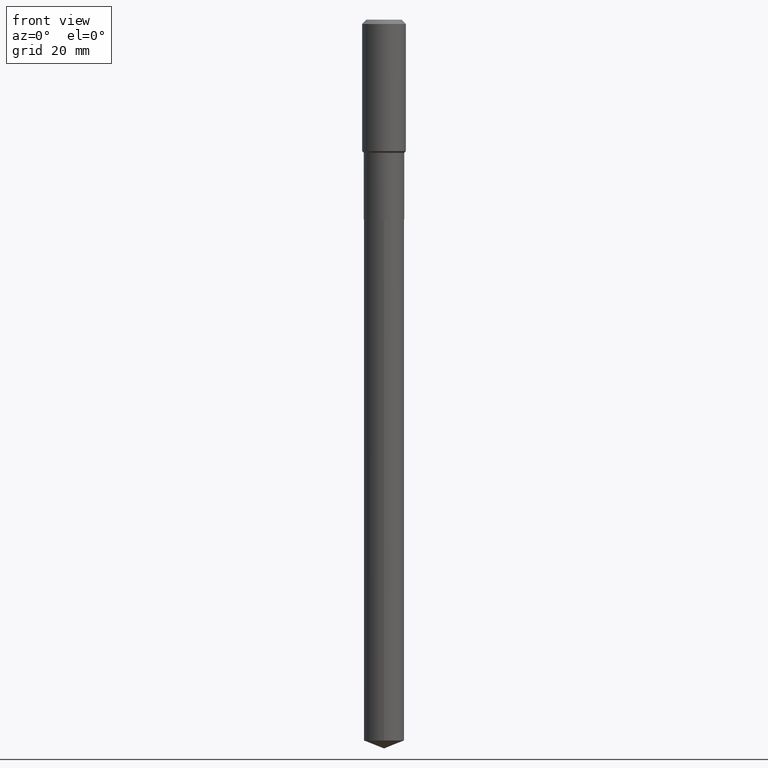
[diagram: clean part render]
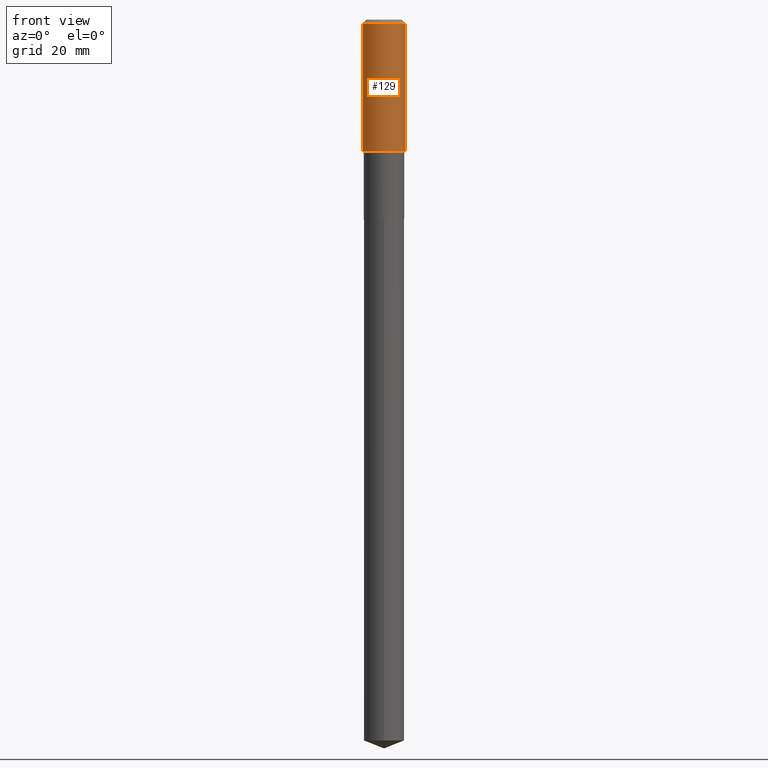
[diagram: same view with one face highlighted and labeled with its STEP entity id]
A machine part, front view. The second image highlights one B-rep face of the part: STEP entity #129.
In plain terms, the highlighted cylindrical surface (edge-blend (fillet) strip) has radius 7.9997 mm, axis along (-0, 0, 1).
Its self-contained STEP definition (entity closure, byte-faithful):
#8 = EDGE_LOOP ( 'NONE', ( #171, #224, #110, #112 ) ) ;
#40 = CARTESIAN_POINT ( 'NONE',  ( -0.3149500000000000077, -1.183779908383150389E-15, -0.06299000000000036514 ) ) ;
#47 = AXIS2_PLACEMENT_3D ( 'NONE', #126, #272, #401 ) ;
#51 = CARTESIAN_POINT ( 'NONE',  ( -0.3149500000000001743, 2.237854346276436774E-15, -1.549218606675783237E-29 ) ) ;
#88 = LINE ( 'NONE', #51, #189 ) ;
#90 = DIRECTION ( 'NONE',  ( 1.000000000000000000, -6.982962677686265922E-15, 4.876176775795935232E-29 ) ) ;
#110 = ORIENTED_EDGE ( 'NONE', *, *, #111, .T. ) ;
#111 = EDGE_CURVE ( 'NONE', #191, #482, #117, .T. ) ;
#112 = ORIENTED_EDGE ( 'NONE', *, *, #409, .F. ) ;
#117 = LINE ( 'NONE', #266, #168 ) ;
#123 = AXIS2_PLACEMENT_3D ( 'NONE', #341, #232, #90 ) ;
#126 = CARTESIAN_POINT ( 'NONE',  ( 4.639054325333201492E-29, -6.623340099785443286E-15, -1.896999999999998909 ) ) ;
#129 = ADVANCED_FACE ( 'NONE', ( #229 ), #380, .T. ) ;
#165 = CARTESIAN_POINT ( 'NONE',  ( 0.3149500000000002298, -8.822624195122734735E-15, -1.896999999999998909 ) ) ;
#168 = VECTOR ( 'NONE', #416, 39.37007874015748143 ) ;
#171 = ORIENTED_EDGE ( 'NONE', *, *, #187, .F. ) ;
#172 = DIRECTION ( 'NONE',  ( -2.445468806185136877E-29, 3.491481338843145188E-15, 1.000000000000000000 ) ) ;
#185 = CARTESIAN_POINT ( 'NONE',  ( 1.540400801016026329E-30, -2.199284095337310135E-16, -0.06299000000000036514 ) ) ;
#187 = EDGE_CURVE ( 'NONE', #418, #428, #88, .T. ) ;
#189 = VECTOR ( 'NONE', #172, 39.37007874015748143 ) ;
#191 = VERTEX_POINT ( 'NONE', #165 ) ;
#199 = CARTESIAN_POINT ( 'NONE',  ( 0.3149500000000000077, -2.419212504871020909E-15, -0.06299000000000036514 ) ) ;
#224 = ORIENTED_EDGE ( 'NONE', *, *, #259, .T. ) ;
#226 = DIRECTION ( 'NONE',  ( -2.445468806185136597E-29, 3.491481338843145583E-15, 1.000000000000000000 ) ) ;
#229 = FACE_OUTER_BOUND ( 'NONE', #8, .T. ) ;
#232 = DIRECTION ( 'NONE',  ( -2.445468806185136597E-29, 3.491481338843145583E-15, 1.000000000000000000 ) ) ;
#259 = EDGE_CURVE ( 'NONE', #418, #191, #283, .T. ) ;
#266 = CARTESIAN_POINT ( 'NONE',  ( 0.3149500000000001743, -2.199284095337290660E-15, 1.535751875536930690E-29 ) ) ;
#272 = DIRECTION ( 'NONE',  ( -2.445468806185136597E-29, 3.491481338843145583E-15, 1.000000000000000000 ) ) ;
#283 = CIRCLE ( 'NONE', #47, 0.3149500000000002298 ) ;
#285 = AXIS2_PLACEMENT_3D ( 'NONE', #185, #226, #331 ) ;
#323 = CIRCLE ( 'NONE', #285, 0.3149500000000000077 ) ;
#331 = DIRECTION ( 'NONE',  ( 1.000000000000000000, -6.982962677686266711E-15, 0.000000000000000000 ) ) ;
#341 = CARTESIAN_POINT ( 'NONE',  ( 0.000000000000000000, 0.000000000000000000, 0.000000000000000000 ) ) ;
#380 = CYLINDRICAL_SURFACE ( 'NONE', #123, 0.3149500000000001743 ) ;
#401 = DIRECTION ( 'NONE',  ( 1.000000000000000000, -6.982962677686264344E-15, 0.000000000000000000 ) ) ;
#409 = EDGE_CURVE ( 'NONE', #428, #482, #323, .T. ) ;
#416 = DIRECTION ( 'NONE',  ( -2.445468806185136877E-29, 3.491481338843145188E-15, 1.000000000000000000 ) ) ;
#418 = VERTEX_POINT ( 'NONE', #483 ) ;
#428 = VERTEX_POINT ( 'NONE', #40 ) ;
#482 = VERTEX_POINT ( 'NONE', #199 ) ;
#483 = CARTESIAN_POINT ( 'NONE',  ( -0.3149500000000002298, -4.385485753509006513E-15, -1.896999999999998909 ) ) ;